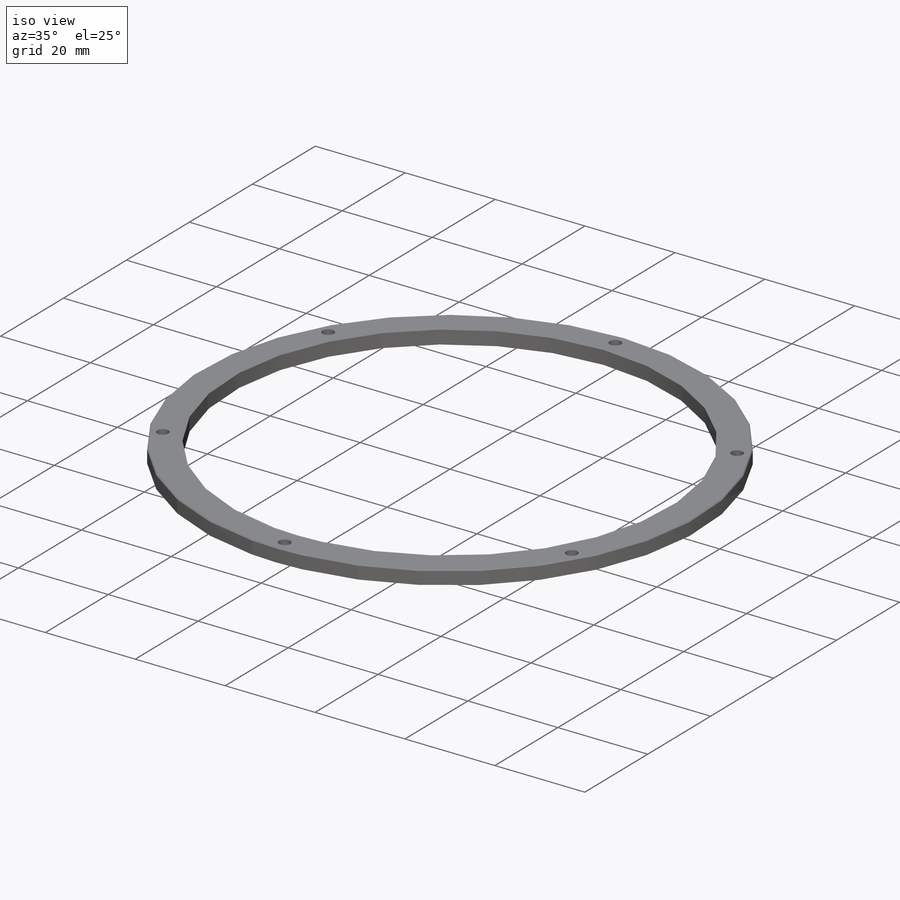
[diagram: iso view]
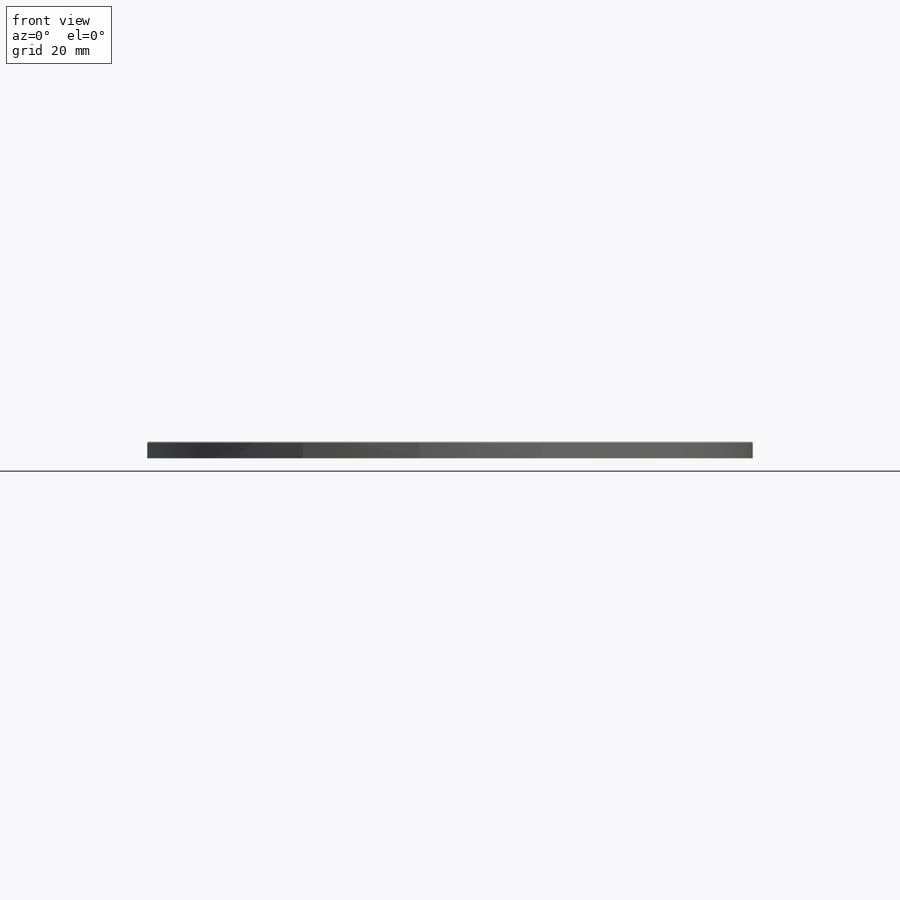
[diagram: front view]
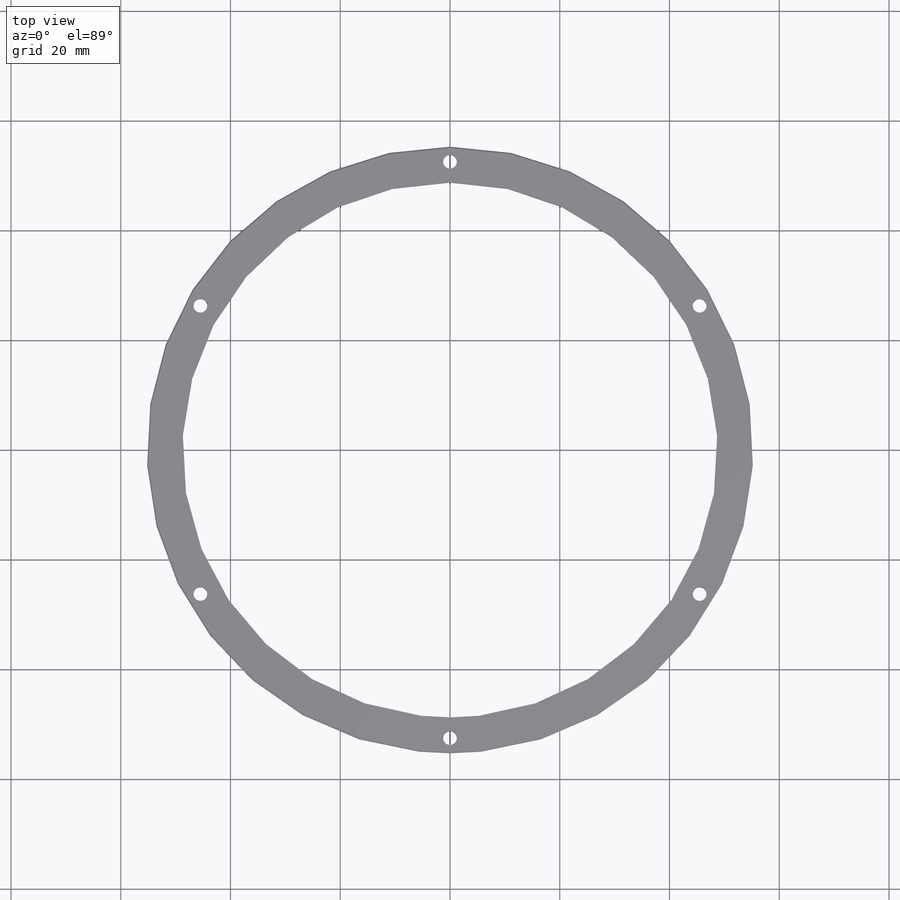
[diagram: top view]
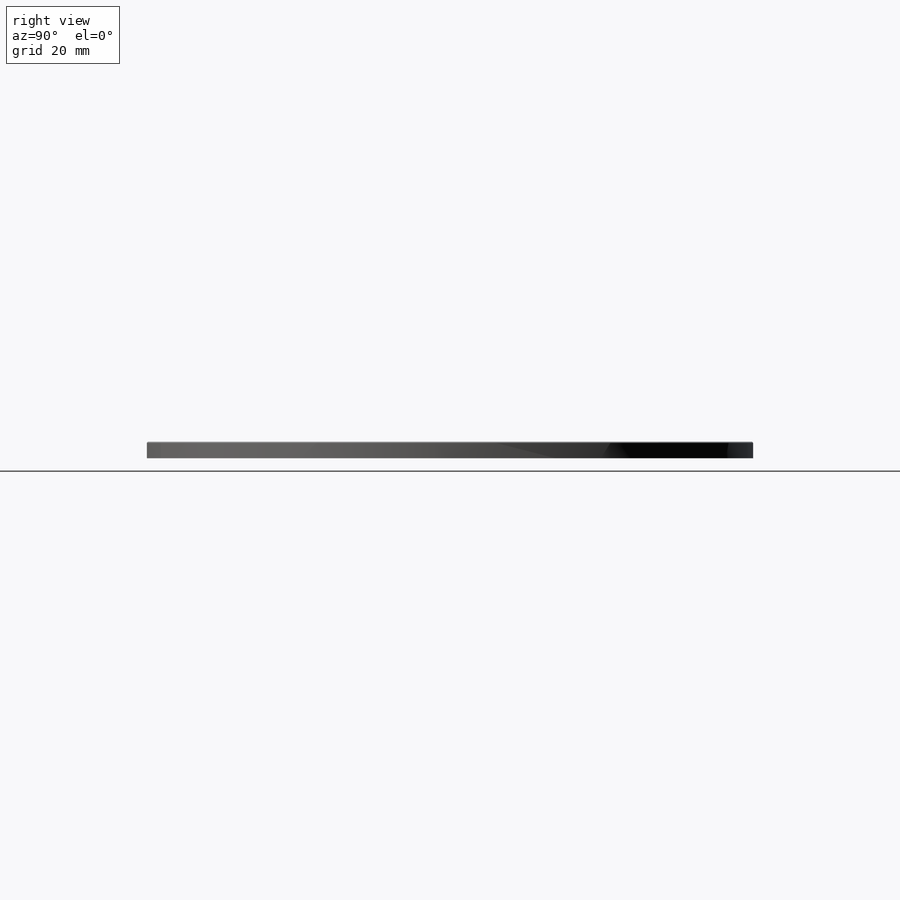
[diagram: right view]
SOLIDWORKS PART (.sldprt)
format: sldprt  version: not decoded by parser v0  size: 244,736 bytes
history: native  units: mm
features: thread x6, sketch x4, plane x3, material x1, extrude x1, hole x1, chamfer x1 (+10 scaffold rows collapsed)
feature tree (27):
  scaffold x10  (default folders/planes/origin — collapsed)
  material  "材质 <未指定>"
  plane  "前视"
  plane  "上视"
  plane  "右视"
  sketch  "草图1"  dims[c1.D1=~56.913568mm c1.D2=110.5mm c2.D1=6.5mm]
  extrude  "凸台-拉伸1"  Depth=3mm
  sketch  "草图2"  dims[c1.D1=52.525mm c2.D1=6.0]
  hole  "M3x0.5 螺纹孔1"  [1 undecoded]
  sketch  "3D草图1"
  sketch  "草图3"  dims[hole-wizard template sketch: 60 standard entries collapsed; hole parameters kept: c18.通孔螺纹孔钻头深度=3.0mm]
  thread  "孔螺蚊线1"  Diameter=3mm  [1 undecoded]
  thread  "孔螺蚊线2"  Diameter=3mm  [1 undecoded]
  thread  "孔螺蚊线3"  Diameter=3mm  [1 undecoded]
  thread  "孔螺蚊线4"  Diameter=3mm  [1 undecoded]
  thread  "孔螺蚊线5"  Diameter=3mm  [1 undecoded]
  thread  "孔螺蚊线6"  Diameter=3mm  [1 undecoded]
  chamfer  "倒角1"  Distance=0.2mm Angle=45deg
decode coverage: 11 of 13 modeling features carry decoded parameters
note: ~ marks probable driven/reference dimensions
note: 7 parameter values undecoded
note: suppression state not decoded; provenance and decode notes live in map.json
